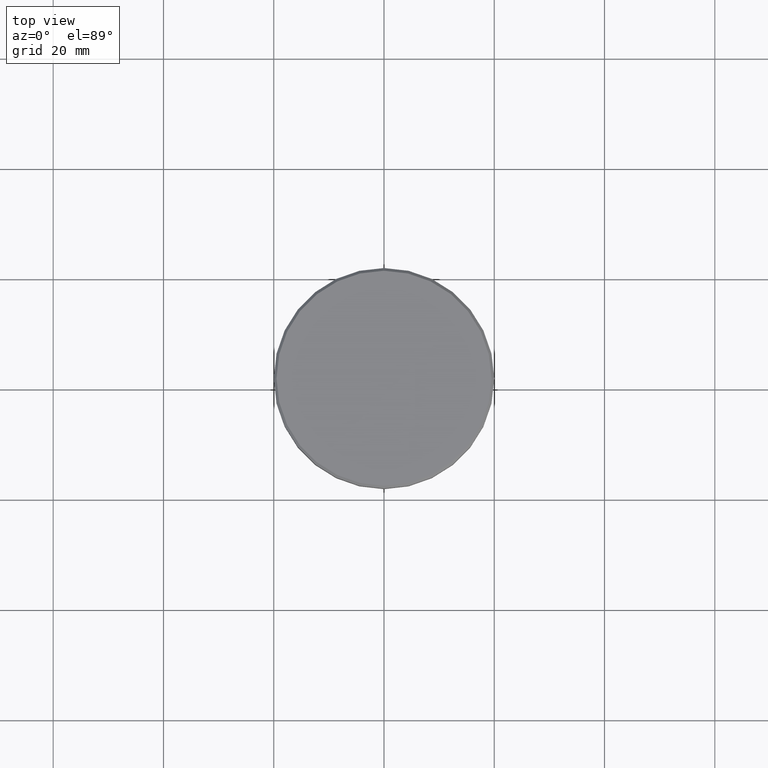
[diagram: clean part render]
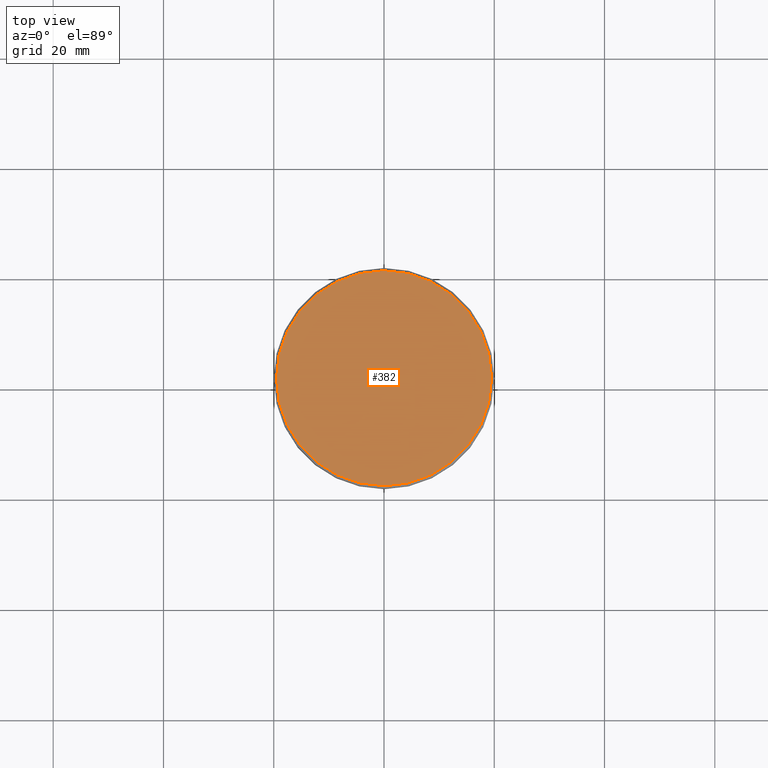
[diagram: same view with one face highlighted and labeled with its STEP entity id]
A machine part, top view. The second image highlights one B-rep face of the part: STEP entity #382.
In plain terms, the highlighted planar face has unit normal (0, -0, 1).
Its self-contained STEP definition (entity closure, byte-faithful):
#20 = CARTESIAN_POINT ( 'NONE',  ( 0.000000000000000000, 0.000000000000000000, 0.000000000000000000 ) ) ;
#75 = CARTESIAN_POINT ( 'NONE',  ( 0.000000000000000000, 0.000000000000000000, 0.000000000000000000 ) ) ;
#120 = CARTESIAN_POINT ( 'NONE',  ( -19.49999999999998934, 0.000000000000000000, 0.000000000000000000 ) ) ;
#184 = DIRECTION ( 'NONE',  ( 1.000000000000000000, 0.000000000000000000, 0.000000000000000000 ) ) ;
#211 = FACE_OUTER_BOUND ( 'NONE', #663, .T. ) ;
#222 = CARTESIAN_POINT ( 'NONE',  ( 0.000000000000000000, 0.000000000000000000, 0.000000000000000000 ) ) ;
#292 = AXIS2_PLACEMENT_3D ( 'NONE', #75, #353, #996 ) ;
#295 = AXIS2_PLACEMENT_3D ( 'NONE', #222, #531, #184 ) ;
#340 = DIRECTION ( 'NONE',  ( 1.000000000000000000, 0.000000000000000000, 0.000000000000000000 ) ) ;
#353 = DIRECTION ( 'NONE',  ( -0.000000000000000000, -0.000000000000000000, 1.000000000000000000 ) ) ;
#373 = CARTESIAN_POINT ( 'NONE',  ( 19.49999999999998934, 2.418677428316021937E-15, 0.000000000000000000 ) ) ;
#382 = ADVANCED_FACE ( 'NONE', ( #211 ), #850, .T. ) ;
#399 = DIRECTION ( 'NONE',  ( 0.000000000000000000, -0.000000000000000000, 1.000000000000000000 ) ) ;
#425 = EDGE_CURVE ( 'NONE', #584, #1090, #523, .T. ) ;
#436 = ORIENTED_EDGE ( 'NONE', *, *, #425, .T. ) ;
#523 = CIRCLE ( 'NONE', #292, 19.49999999999998934 ) ;
#531 = DIRECTION ( 'NONE',  ( -0.000000000000000000, -0.000000000000000000, 1.000000000000000000 ) ) ;
#584 = VERTEX_POINT ( 'NONE', #373 ) ;
#663 = EDGE_LOOP ( 'NONE', ( #740, #436 ) ) ;
#719 = CIRCLE ( 'NONE', #295, 19.49999999999998934 ) ;
#740 = ORIENTED_EDGE ( 'NONE', *, *, #864, .T. ) ;
#756 = AXIS2_PLACEMENT_3D ( 'NONE', #20, #399, #340 ) ;
#850 = PLANE ( 'NONE',  #756 ) ;
#864 = EDGE_CURVE ( 'NONE', #1090, #584, #719, .T. ) ;
#996 = DIRECTION ( 'NONE',  ( 1.000000000000000000, 0.000000000000000000, 0.000000000000000000 ) ) ;
#1090 = VERTEX_POINT ( 'NONE', #120 ) ;